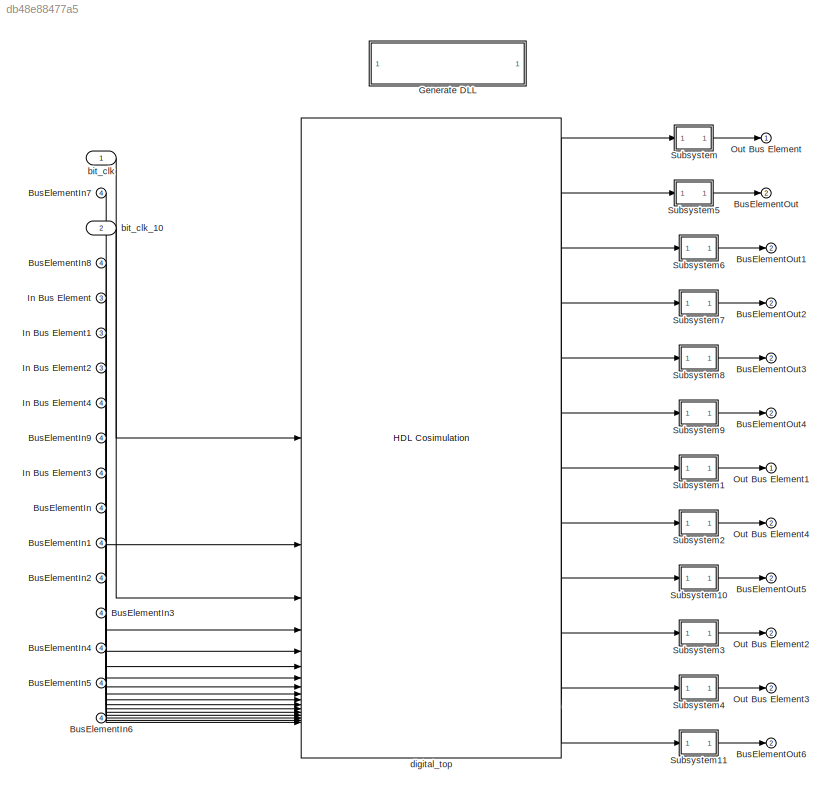
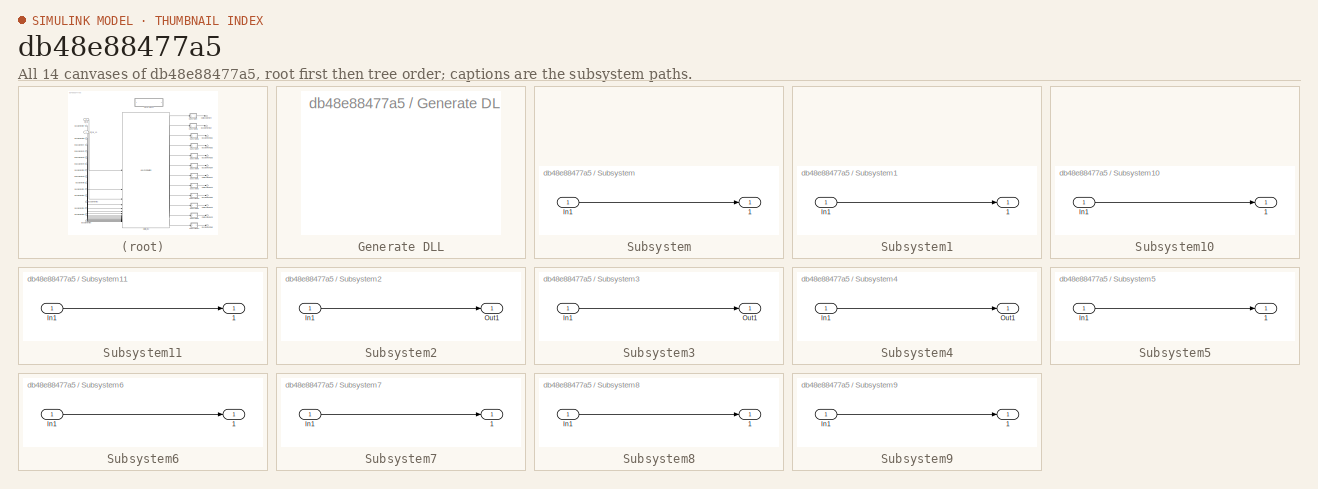
[diagram: thumbnail index - all 14 canvases of the model, root first then tree order]
MODEL slx_db48e88477a5
KIND model
CONFIG AbsTol = auto
CONFIG EnableMultiTasking = off
CONFIG FixedStep = auto
CONFIG MaxStep = auto
CONFIG MinStep = auto
CONFIG RelTol = 1e-3
CONFIG SampleTimeConstraint = Unconstrained
CONFIG SolverName = VariableStepAuto
CONFIG StartTime = 0.0
CONFIG StopTime = 10.0
BLOCK [Inport] BusElementIn
  Port = 4
BLOCK [Inport] BusElementIn1
  Port = 4
BLOCK [Inport] BusElementIn2
  Port = 4
BLOCK [Inport] BusElementIn3
  Port = 4
BLOCK [Inport] BusElementIn4
  Port = 4
BLOCK [Inport] BusElementIn5
  Port = 4
BLOCK [Inport] BusElementIn6
  Port = 4
BLOCK [Inport] BusElementIn7
  Port = 4
BLOCK [Inport] BusElementIn8
  Port = 4
BLOCK [Inport] BusElementIn9
  Port = 4
BLOCK [Outport] BusElementOut
  Port = 2
BLOCK [Outport] BusElementOut1
  Port = 2
BLOCK [Outport] BusElementOut2
  Port = 2
BLOCK [Outport] BusElementOut3
  Port = 2
BLOCK [Outport] BusElementOut4
  Port = 2
BLOCK [Outport] BusElementOut5
  Port = 2
BLOCK [Outport] BusElementOut6
  Port = 2
BLOCK [SubSystem] Generate DLL
  OpenFcn = eval('hdlverifier_gendll_digital_top');
BLOCK [Inport] In Bus Element
  Port = 3
BLOCK [Inport] In Bus Element1
  Port = 3
BLOCK [Inport] In Bus Element2
  Port = 3
BLOCK [Inport] In Bus Element3
  Port = 4
BLOCK [Inport] In Bus Element4
  Port = 4
BLOCK [Outport] Out Bus Element
BLOCK [Outport] Out Bus Element1
BLOCK [Outport] Out Bus Element2
  Port = 2
BLOCK [Outport] Out Bus Element3
  Port = 2
BLOCK [Outport] Out Bus Element4
  Port = 2
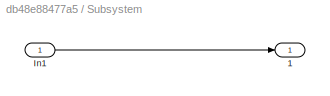
BLOCK [SubSystem] Subsystem
BLOCK [Outport] Subsystem/1
  SampleTime = time_precision
BLOCK [Inport] Subsystem/In1
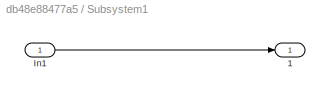
BLOCK [SubSystem] Subsystem1
BLOCK [Outport] Subsystem1/1
  SampleTime = time_precision
BLOCK [Inport] Subsystem1/In1
BLOCK [SubSystem] Subsystem10
BLOCK [Outport] Subsystem10/1
  SampleTime = time_precision
BLOCK [Inport] Subsystem10/In1
BLOCK [SubSystem] Subsystem11
BLOCK [Outport] Subsystem11/1
  SampleTime = time_precision
BLOCK [Inport] Subsystem11/In1
BLOCK [SubSystem] Subsystem2
BLOCK [Inport] Subsystem2/In1
BLOCK [Outport] Subsystem2/Out1
  SampleTime = time_precision
BLOCK [SubSystem] Subsystem3
BLOCK [Inport] Subsystem3/In1
BLOCK [Outport] Subsystem3/Out1
  SampleTime = time_precision
BLOCK [SubSystem] Subsystem4
BLOCK [Inport] Subsystem4/In1
BLOCK [Outport] Subsystem4/Out1
  SampleTime = time_precision
BLOCK [SubSystem] Subsystem5
BLOCK [Outport] Subsystem5/1
  SampleTime = time_precision
BLOCK [Inport] Subsystem5/In1
BLOCK [SubSystem] Subsystem6
BLOCK [Outport] Subsystem6/1
  SampleTime = time_precision
BLOCK [Inport] Subsystem6/In1
BLOCK [SubSystem] Subsystem7
BLOCK [Outport] Subsystem7/1
  SampleTime = time_precision
BLOCK [Inport] Subsystem7/In1
BLOCK [SubSystem] Subsystem8
BLOCK [Outport] Subsystem8/1
  SampleTime = time_precision
BLOCK [Inport] Subsystem8/In1
BLOCK [SubSystem] Subsystem9
BLOCK [Outport] Subsystem9/1
  SampleTime = time_precision
BLOCK [Inport] Subsystem9/In1
BLOCK [Inport] bit_clk
  SampleTime = time_precision
BLOCK [Inport] bit_clk_10
  Port = 2
  SampleTime = time_precision
BLOCK [Reference] digital_top  REF=vivadosimlib/HDL Cosimulation
  SourceBlock = vivadosimlib/HDL Cosimulation
  SourceType = Simulink and Vivado Simulator Cosimulation
  UserDataPersistent = on
LINE BusElementIn1:1 -> digital_top:12
LINE BusElementIn2:1 -> digital_top:13
LINE BusElementIn3:1 -> digital_top:14
LINE BusElementIn4:1 -> digital_top:15
LINE BusElementIn5:1 -> digital_top:16
LINE BusElementIn6:1 -> digital_top:17
LINE BusElementIn7:1 -> digital_top:2
LINE BusElementIn8:1 -> digital_top:4
LINE BusElementIn9:1 -> digital_top:9
LINE BusElementIn:1 -> digital_top:11
LINE In Bus Element1:1 -> digital_top:6
LINE In Bus Element2:1 -> digital_top:7
LINE In Bus Element3:1 -> digital_top:10
LINE In Bus Element4:1 -> digital_top:8
LINE In Bus Element:1 -> digital_top:5
LINE Subsystem/In1:1 -> Subsystem/1:1
LINE Subsystem1/In1:1 -> Subsystem1/1:1
LINE Subsystem10/In1:1 -> Subsystem10/1:1
LINE Subsystem10:1 -> BusElementOut5:1
LINE Subsystem11/In1:1 -> Subsystem11/1:1
LINE Subsystem11:1 -> BusElementOut6:1
LINE Subsystem1:1 -> Out Bus Element1:1
LINE Subsystem2/In1:1 -> Subsystem2/Out1:1
LINE Subsystem2:1 -> Out Bus Element4:1
LINE Subsystem3/In1:1 -> Subsystem3/Out1:1
LINE Subsystem3:1 -> Out Bus Element2:1
LINE Subsystem4/In1:1 -> Subsystem4/Out1:1
LINE Subsystem4:1 -> Out Bus Element3:1
LINE Subsystem5/In1:1 -> Subsystem5/1:1
LINE Subsystem5:1 -> BusElementOut:1
LINE Subsystem6/In1:1 -> Subsystem6/1:1
LINE Subsystem6:1 -> BusElementOut1:1
LINE Subsystem7/In1:1 -> Subsystem7/1:1
LINE Subsystem7:1 -> BusElementOut2:1
LINE Subsystem8/In1:1 -> Subsystem8/1:1
LINE Subsystem8:1 -> BusElementOut3:1
LINE Subsystem9/In1:1 -> Subsystem9/1:1
LINE Subsystem9:1 -> BusElementOut4:1
LINE Subsystem:1 -> Out Bus Element:1
LINE bit_clk:1 -> digital_top:1
LINE bit_clk_10:1 -> digital_top:3
LINE digital_top:1 -> Subsystem:1
LINE digital_top:10 -> Subsystem3:1
LINE digital_top:11 -> Subsystem4:1
LINE digital_top:12 -> Subsystem11:1
LINE digital_top:2 -> Subsystem5:1
LINE digital_top:3 -> Subsystem6:1
LINE digital_top:4 -> Subsystem7:1
LINE digital_top:5 -> Subsystem8:1
LINE digital_top:6 -> Subsystem9:1
LINE digital_top:7 -> Subsystem1:1
LINE digital_top:8 -> Subsystem2:1
LINE digital_top:9 -> Subsystem10:1
